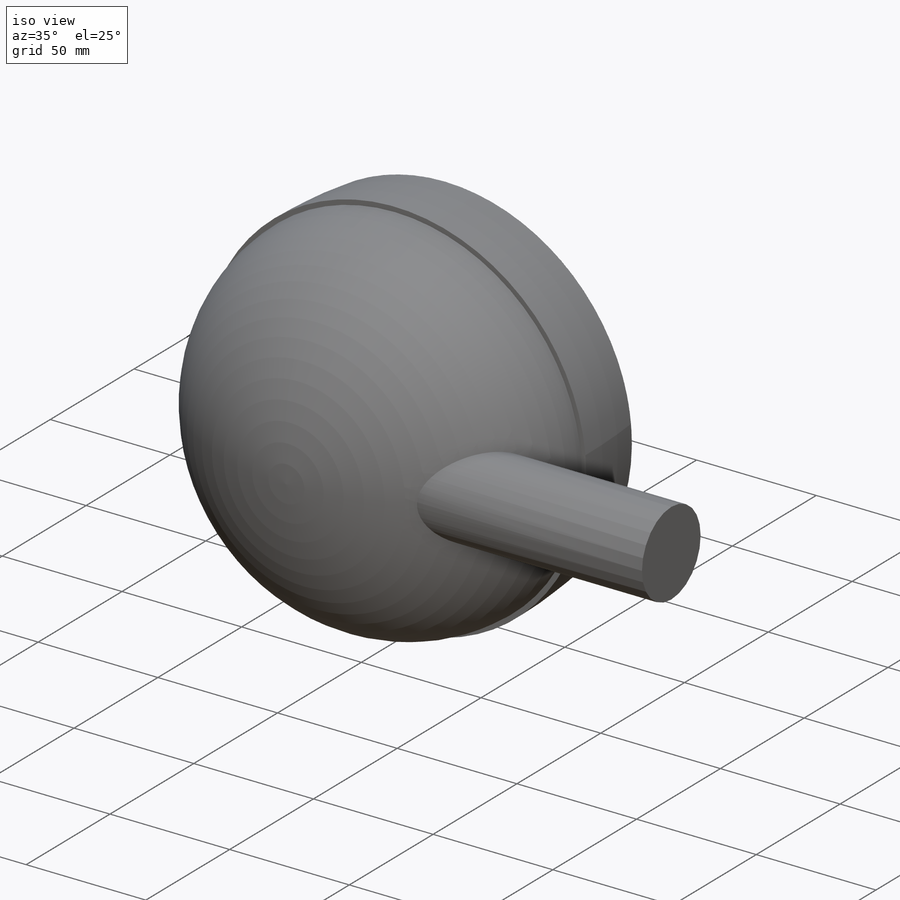
[diagram: iso view]
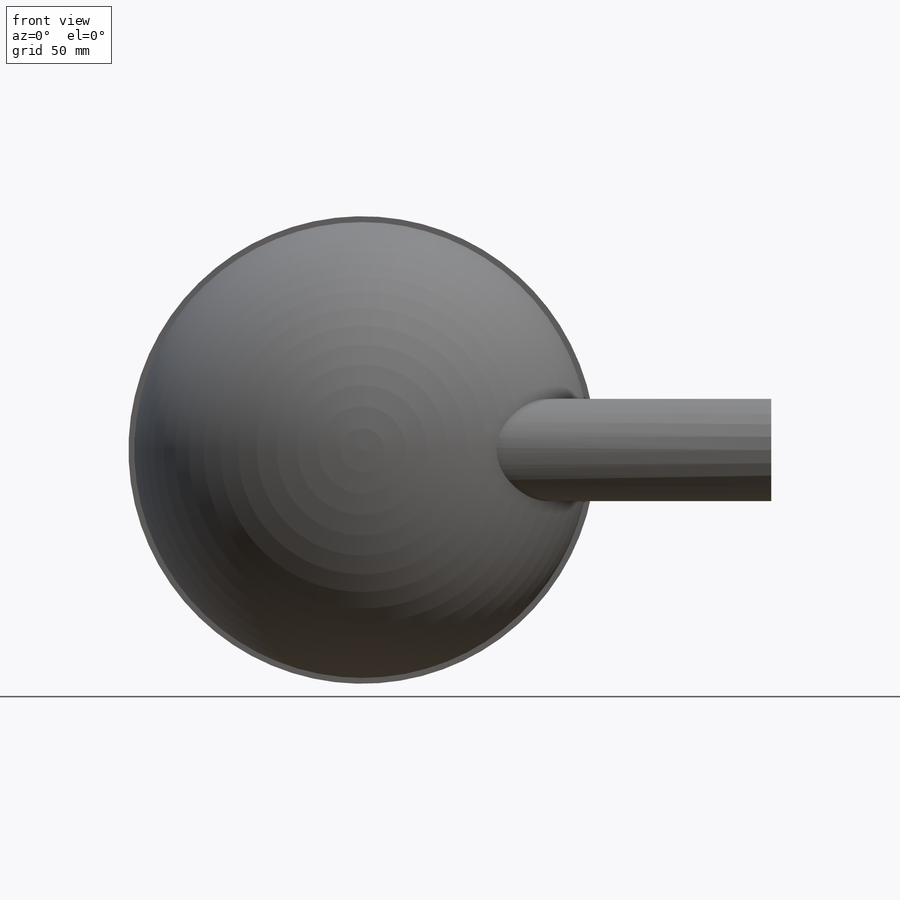
[diagram: front view]
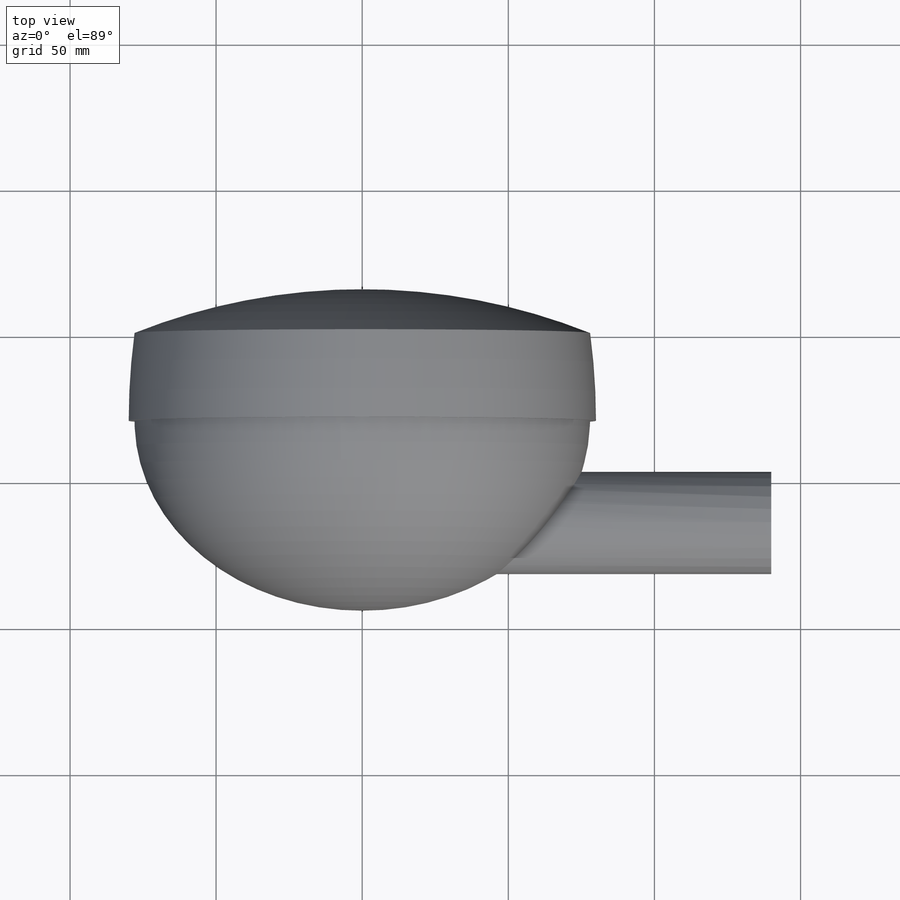
[diagram: top view]
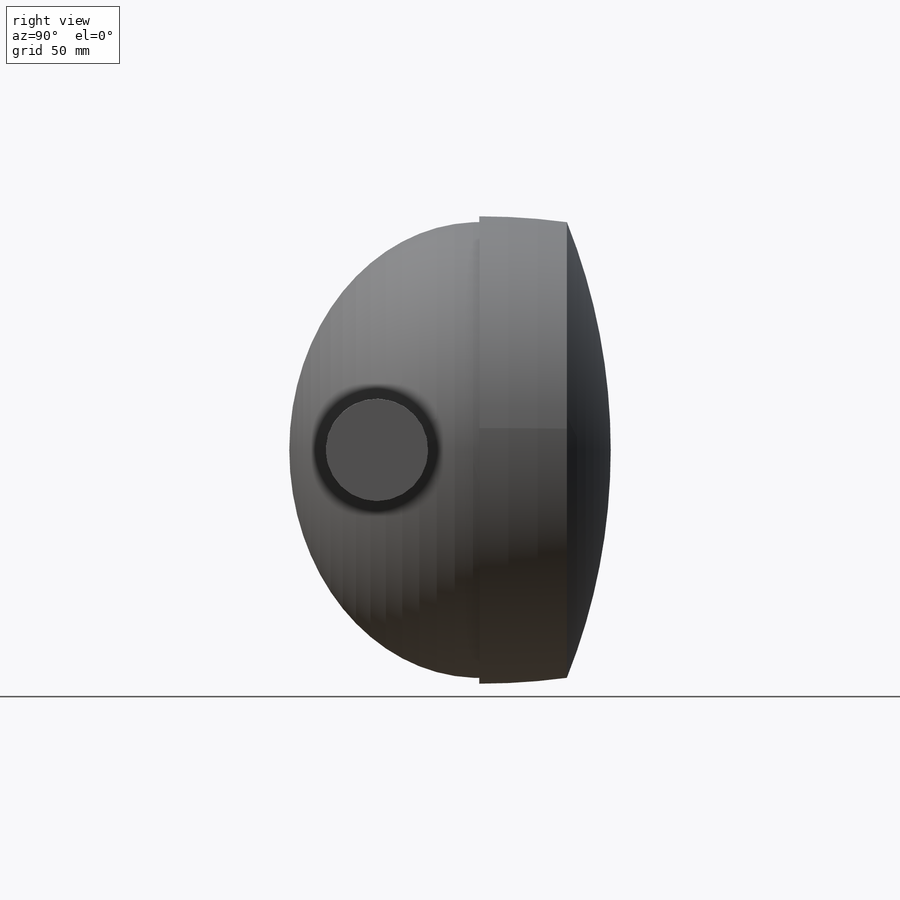
[diagram: right view]
SOLIDWORKS PART (.sldprt)
format: sldprt  version: not decoded by parser v0  size: 207,872 bytes
history: native  units: mm
features: sketch x3, revolve x2, material x1, extrude x1 (+13 scaffold rows collapsed)
feature tree (20):
  scaffold x13  (default folders/planes/origin — collapsed)
  material  "Material <not specified>"
  sketch  "Sketch5"  dims[c1.D5=~241.754684mm c1.D1=30.0mm c1.D2=95.0mm c1.D3=80.0mm c1.D4=2.0mm c2.D5=2.0mm]
  revolve  "Revolve2"  Angle=360deg
  sketch  "Sketch6"  dims[D1=15.0mm]
  revolve  "Revolve3"  Angle=360deg
  sketch  "Sketch7"  dims[D2=35.0mm D1=65.0mm]
  extrude  "Boss-Extrude1"  Depth=140mm
decode coverage: 6 of 6 modeling features carry decoded parameters
note: ~ marks probable driven/reference dimensions
note: suppression state not decoded; provenance and decode notes live in map.json
